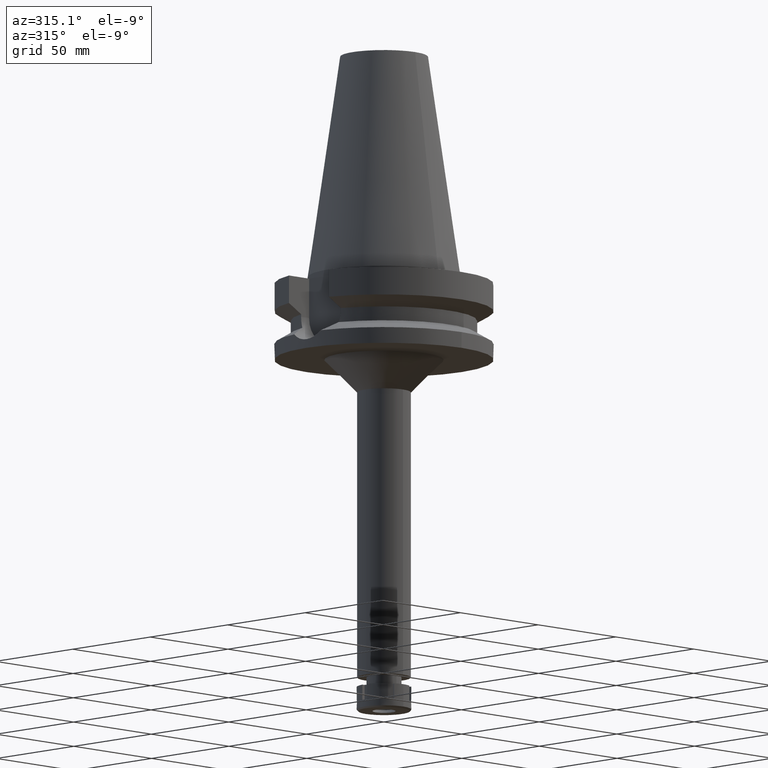
[diagram: clean part render]
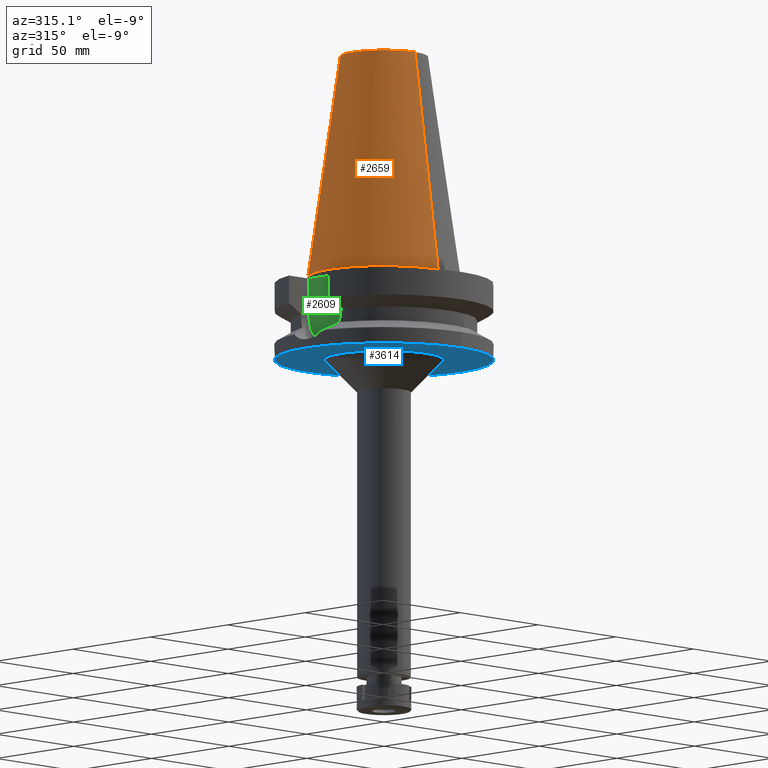
[diagram: same view with three faces highlighted in distinct colors, each labeled with its STEP entity id]
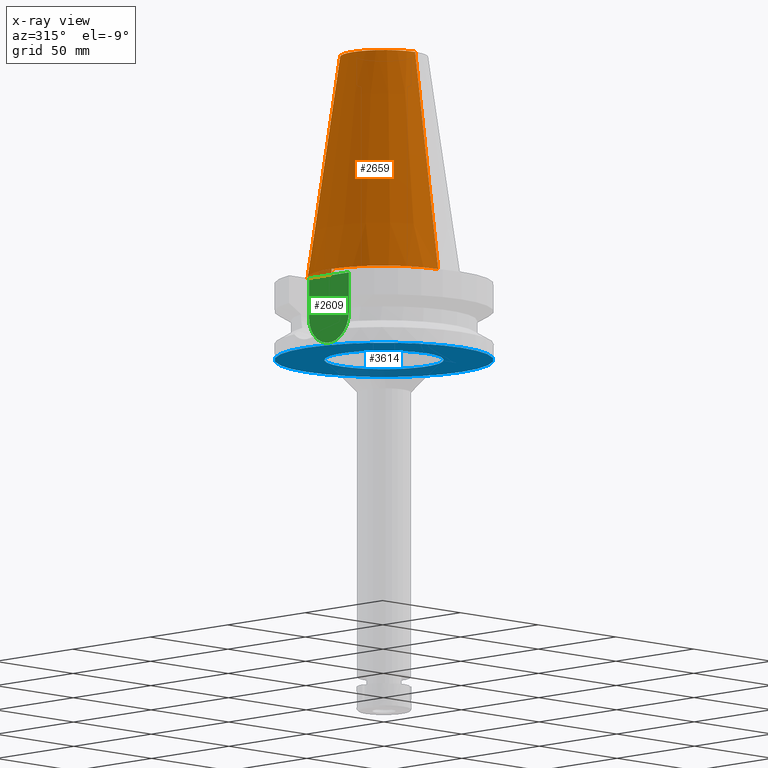
[diagram: x-ray of the same camera — body ghosted, the three highlighted faces saturated]
A machine part, auxiliary view with three faces highlighted in distinct colors.
The next image is the same camera in x-ray (body ghosted, the three faces saturated) — at least one of them is partly hidden behind the body in this view.
Their STEP definitions:

[orange] entity #2659 — the highlighted conical surface has half-angle 8.297 deg.
#103 = CONICAL_SURFACE ( 'NONE', #1945, 27.50221485948000222, 0.1448099680379422438 ) ;
#106 = DIRECTION ( 'NONE',  ( 0.0000000000000000000, 0.0000000000000000000, -1.000000000000000000 ) ) ;
#126 = VERTEX_POINT ( 'NONE', #2661 ) ;
#357 = EDGE_CURVE ( 'NONE', #1950, #126, #1957, .T. ) ;
#386 = DIRECTION ( 'NONE',  ( 0.0000000000000000000, -1.000000000000000000, 0.0000000000000000000 ) ) ;
#495 = CARTESIAN_POINT ( 'NONE',  ( 0.0000000000000000000, 1.847992019912999597E-14, 50.89999999999999858 ) ) ;
#509 = DIRECTION ( 'NONE',  ( 0.0000000000000000000, -1.000000000000000000, 0.0000000000000000000 ) ) ;
#741 = LINE ( 'NONE', #1860, #2910 ) ;
#764 = DIRECTION ( 'NONE',  ( 0.0000000000000000000, -0.1443043893538948075, -0.9895333461855641000 ) ) ;
#928 = ORIENTED_EDGE ( 'NONE', *, *, #2782, .T. ) ;
#930 = VECTOR ( 'NONE', #2291, 1000.000000000000114 ) ;
#1075 = DIRECTION ( 'NONE',  ( 0.0000000000000000000, 0.0000000000000000000, -1.000000000000000000 ) ) ;
#1318 = ORIENTED_EDGE ( 'NONE', *, *, #2053, .F. ) ;
#1332 = AXIS2_PLACEMENT_3D ( 'NONE', #2439, #106, #386 ) ;
#1365 = EDGE_LOOP ( 'NONE', ( #3254, #1318, #2709, #928 ) ) ;
#1534 = EDGE_CURVE ( 'NONE', #1619, #2260, #3501, .T. ) ;
#1619 = VERTEX_POINT ( 'NONE', #3585 ) ;
#1682 = CARTESIAN_POINT ( 'NONE',  ( 0.0000000000000000000, -20.07942971896000017, 101.7999999999999972 ) ) ;
#1860 = CARTESIAN_POINT ( 'NONE',  ( 0.0000000000000000000, -20.07942971896000017, 101.7999999999999972 ) ) ;
#1945 = AXIS2_PLACEMENT_3D ( 'NONE', #495, #1075, #509 ) ;
#1950 = VERTEX_POINT ( 'NONE', #1682 ) ;
#1957 = CIRCLE ( 'NONE', #3462, 20.07942971896000017 ) ;
#2053 = EDGE_CURVE ( 'NONE', #1950, #1619, #741, .T. ) ;
#2260 = VERTEX_POINT ( 'NONE', #3386 ) ;
#2287 = DIRECTION ( 'NONE',  ( 0.0000000000000000000, 0.0000000000000000000, -1.000000000000000000 ) ) ;
#2291 = DIRECTION ( 'NONE',  ( 0.0000000000000000000, 0.1443043893538948075, -0.9895333461855641000 ) ) ;
#2439 = CARTESIAN_POINT ( 'NONE',  ( 0.0000000000000000000, 1.847992019912999597E-14, 3.979039320256999774E-13 ) ) ;
#2659 = ADVANCED_FACE ( 'NONE', ( #3068 ), #103, .T. ) ;
#2661 = CARTESIAN_POINT ( 'NONE',  ( 0.0000000000000000000, 20.07942971896000017, 101.7999999999999972 ) ) ;
#2709 = ORIENTED_EDGE ( 'NONE', *, *, #357, .T. ) ;
#2782 = EDGE_CURVE ( 'NONE', #126, #2260, #2884, .T. ) ;
#2884 = LINE ( 'NONE', #2933, #930 ) ;
#2910 = VECTOR ( 'NONE', #764, 1000.000000000000114 ) ;
#2933 = CARTESIAN_POINT ( 'NONE',  ( 0.0000000000000000000, 20.07942971896000017, 101.7999999999999972 ) ) ;
#3068 = FACE_OUTER_BOUND ( 'NONE', #1365, .T. ) ;
#3229 = CARTESIAN_POINT ( 'NONE',  ( 0.0000000000000000000, 1.847992019912999597E-14, 101.7999999999999972 ) ) ;
#3254 = ORIENTED_EDGE ( 'NONE', *, *, #1534, .F. ) ;
#3386 = CARTESIAN_POINT ( 'NONE',  ( 0.0000000000000000000, 34.92499999999999716, 4.689582056016999490E-13 ) ) ;
#3436 = DIRECTION ( 'NONE',  ( 0.0000000000000000000, -1.000000000000000000, 0.0000000000000000000 ) ) ;
#3462 = AXIS2_PLACEMENT_3D ( 'NONE', #3229, #2287, #3436 ) ;
#3501 = CIRCLE ( 'NONE', #1332, 34.92499999999999716 ) ;
#3585 = CARTESIAN_POINT ( 'NONE',  ( 0.0000000000000000000, -34.92499999999999716, 4.689582056016999490E-13 ) ) ;

[blue] entity #3614 — the highlighted planar face has unit normal (0, 0, -1).
#3 = DIRECTION ( 'NONE',  ( 0.0000000000000000000, 1.000000000000000000, 0.0000000000000000000 ) ) ;
#114 = EDGE_CURVE ( 'NONE', #3233, #3294, #3522, .T. ) ;
#222 = AXIS2_PLACEMENT_3D ( 'NONE', #2040, #3418, #2908 ) ;
#253 = CARTESIAN_POINT ( 'NONE',  ( 0.0000000000000000000, 0.0000000000000000000, -38.00000000000000000 ) ) ;
#290 = FACE_OUTER_BOUND ( 'NONE', #3346, .T. ) ;
#389 = ORIENTED_EDGE ( 'NONE', *, *, #2191, .F. ) ;
#528 = CARTESIAN_POINT ( 'NONE',  ( 0.0000000000000000000, 2.652462502272999887E-14, -38.00000000000000000 ) ) ;
#926 = CARTESIAN_POINT ( 'NONE',  ( 0.0000000000000000000, -27.25000000000000000, -38.00000000000000000 ) ) ;
#941 = VERTEX_POINT ( 'NONE', #3590 ) ;
#1052 = ORIENTED_EDGE ( 'NONE', *, *, #114, .F. ) ;
#1164 = VERTEX_POINT ( 'NONE', #2501 ) ;
#1403 = DIRECTION ( 'NONE',  ( 0.0000000000000000000, 0.0000000000000000000, 1.000000000000000000 ) ) ;
#1653 = ORIENTED_EDGE ( 'NONE', *, *, #1866, .F. ) ;
#1670 = DIRECTION ( 'NONE',  ( 0.0000000000000000000, -1.000000000000000000, 0.0000000000000000000 ) ) ;
#1751 = ORIENTED_EDGE ( 'NONE', *, *, #2599, .F. ) ;
#1861 = DIRECTION ( 'NONE',  ( 0.0000000000000000000, 0.0000000000000000000, -1.000000000000000000 ) ) ;
#1866 = EDGE_CURVE ( 'NONE', #941, #1164, #1877, .T. ) ;
#1877 = CIRCLE ( 'NONE', #222, 50.00000000000000000 ) ;
#1884 = AXIS2_PLACEMENT_3D ( 'NONE', #528, #1403, #1670 ) ;
#1949 = AXIS2_PLACEMENT_3D ( 'NONE', #3412, #2224, #3369 ) ;
#2040 = CARTESIAN_POINT ( 'NONE',  ( 0.0000000000000000000, 2.652462502272999887E-14, -38.00000000000000000 ) ) ;
#2191 = EDGE_CURVE ( 'NONE', #3294, #3233, #2487, .T. ) ;
#2222 = DIRECTION ( 'NONE',  ( 0.0000000000000000000, 0.0000000000000000000, -1.000000000000000000 ) ) ;
#2224 = DIRECTION ( 'NONE',  ( 0.0000000000000000000, 0.0000000000000000000, -1.000000000000000000 ) ) ;
#2351 = DIRECTION ( 'NONE',  ( 0.0000000000000000000, -1.000000000000000000, 0.0000000000000000000 ) ) ;
#2487 = CIRCLE ( 'NONE', #3679, 27.25000000000000000 ) ;
#2489 = PLANE ( 'NONE',  #1949 ) ;
#2501 = CARTESIAN_POINT ( 'NONE',  ( 0.0000000000000000000, -50.00000000000000000, -38.00000000000000000 ) ) ;
#2588 = CARTESIAN_POINT ( 'NONE',  ( 0.0000000000000000000, 27.25000000000000000, -38.00000000000000000 ) ) ;
#2599 = EDGE_CURVE ( 'NONE', #1164, #941, #2799, .T. ) ;
#2799 = CIRCLE ( 'NONE', #1884, 50.00000000000000000 ) ;
#2908 = DIRECTION ( 'NONE',  ( 0.0000000000000000000, 1.000000000000000000, 0.0000000000000000000 ) ) ;
#3027 = EDGE_LOOP ( 'NONE', ( #389, #1052 ) ) ;
#3073 = FACE_BOUND ( 'NONE', #3027, .T. ) ;
#3224 = AXIS2_PLACEMENT_3D ( 'NONE', #3261, #1861, #2351 ) ;
#3233 = VERTEX_POINT ( 'NONE', #926 ) ;
#3261 = CARTESIAN_POINT ( 'NONE',  ( 0.0000000000000000000, 0.0000000000000000000, -38.00000000000000000 ) ) ;
#3294 = VERTEX_POINT ( 'NONE', #2588 ) ;
#3346 = EDGE_LOOP ( 'NONE', ( #1653, #1751 ) ) ;
#3369 = DIRECTION ( 'NONE',  ( 0.0000000000000000000, -1.000000000000000000, 0.0000000000000000000 ) ) ;
#3412 = CARTESIAN_POINT ( 'NONE',  ( 0.0000000000000000000, 0.0000000000000000000, -38.00000000000000000 ) ) ;
#3418 = DIRECTION ( 'NONE',  ( 0.0000000000000000000, 0.0000000000000000000, 1.000000000000000000 ) ) ;
#3522 = CIRCLE ( 'NONE', #3224, 27.25000000000000000 ) ;
#3590 = CARTESIAN_POINT ( 'NONE',  ( 0.0000000000000000000, 50.00000000000000000, -38.00000000000000000 ) ) ;
#3614 = ADVANCED_FACE ( 'NONE', ( #290, #3073 ), #2489, .T. ) ;
#3679 = AXIS2_PLACEMENT_3D ( 'NONE', #253, #2222, #3 ) ;

[green] entity #2609 — the highlighted planar face has unit normal (-1, 0, 0).
#212 = LINE ( 'NONE', #226, #3145 ) ;
#226 = CARTESIAN_POINT ( 'NONE',  ( -35.39999999999999858, -12.84999999999999964, -3.000000000000000000 ) ) ;
#289 = ORIENTED_EDGE ( 'NONE', *, *, #3532, .F. ) ;
#309 = DIRECTION ( 'NONE',  ( 0.0000000000000000000, -1.000000000000000000, 0.0000000000000000000 ) ) ;
#642 = EDGE_LOOP ( 'NONE', ( #289, #1970, #1409, #1124 ) ) ;
#872 = DIRECTION ( 'NONE',  ( 1.000000000000000000, 0.0000000000000000000, 0.0000000000000000000 ) ) ;
#920 = DIRECTION ( 'NONE',  ( 0.0000000000000000000, 1.000000000000000000, 0.0000000000000000000 ) ) ;
#1091 = CARTESIAN_POINT ( 'NONE',  ( -35.39999999999999858, -12.84999999999999964, -3.000000000000000000 ) ) ;
#1124 = ORIENTED_EDGE ( 'NONE', *, *, #1454, .T. ) ;
#1281 = CIRCLE ( 'NONE', #3393, 12.84999999999999964 ) ;
#1409 = ORIENTED_EDGE ( 'NONE', *, *, #2548, .F. ) ;
#1444 = CARTESIAN_POINT ( 'NONE',  ( -35.39999999999999858, 1.497743035356999952E-14, -21.14999999999999858 ) ) ;
#1454 = EDGE_CURVE ( 'NONE', #3544, #3123, #2619, .T. ) ;
#1609 = CARTESIAN_POINT ( 'NONE',  ( -35.39999999999999858, 2.015768631397000034E-14, 0.0000000000000000000 ) ) ;
#1667 = VERTEX_POINT ( 'NONE', #3308 ) ;
#1970 = ORIENTED_EDGE ( 'NONE', *, *, #3231, .F. ) ;
#2168 = CARTESIAN_POINT ( 'NONE',  ( -35.39999999999999858, 12.84999999999999964, -21.14999999999999858 ) ) ;
#2189 = AXIS2_PLACEMENT_3D ( 'NONE', #1609, #2503, #3677 ) ;
#2271 = VERTEX_POINT ( 'NONE', #2565 ) ;
#2441 = CARTESIAN_POINT ( 'NONE',  ( -35.39999999999999858, 12.84999999999999964, -3.000000000000000000 ) ) ;
#2503 = DIRECTION ( 'NONE',  ( -1.000000000000000000, 0.0000000000000000000, 0.0000000000000000000 ) ) ;
#2538 = DIRECTION ( 'NONE',  ( 0.0000000000000000000, 0.0000000000000000000, -1.000000000000000000 ) ) ;
#2548 = EDGE_CURVE ( 'NONE', #3544, #2271, #212, .T. ) ;
#2565 = CARTESIAN_POINT ( 'NONE',  ( -35.39999999999999858, -12.84999999999999964, -21.14999999999999858 ) ) ;
#2609 = ADVANCED_FACE ( 'NONE', ( #3084 ), #3623, .T. ) ;
#2619 = LINE ( 'NONE', #2639, #3293 ) ;
#2639 = CARTESIAN_POINT ( 'NONE',  ( -35.39999999999999858, -12.84999999999999964, -3.000000000000000000 ) ) ;
#2761 = DIRECTION ( 'NONE',  ( 0.0000000000000000000, 0.0000000000000000000, 1.000000000000000000 ) ) ;
#3084 = FACE_OUTER_BOUND ( 'NONE', #642, .T. ) ;
#3123 = VERTEX_POINT ( 'NONE', #2441 ) ;
#3145 = VECTOR ( 'NONE', #2538, 1000.000000000000000 ) ;
#3215 = VECTOR ( 'NONE', #2761, 1000.000000000000000 ) ;
#3231 = EDGE_CURVE ( 'NONE', #2271, #1667, #1281, .T. ) ;
#3293 = VECTOR ( 'NONE', #920, 1000.000000000000000 ) ;
#3308 = CARTESIAN_POINT ( 'NONE',  ( -35.39999999999999858, 12.84999999999999964, -21.14999999999999858 ) ) ;
#3319 = LINE ( 'NONE', #2168, #3215 ) ;
#3393 = AXIS2_PLACEMENT_3D ( 'NONE', #1444, #872, #309 ) ;
#3532 = EDGE_CURVE ( 'NONE', #1667, #3123, #3319, .T. ) ;
#3544 = VERTEX_POINT ( 'NONE', #1091 ) ;
#3623 = PLANE ( 'NONE',  #2189 ) ;
#3677 = DIRECTION ( 'NONE',  ( 0.0000000000000000000, 0.0000000000000000000, 1.000000000000000000 ) ) ;